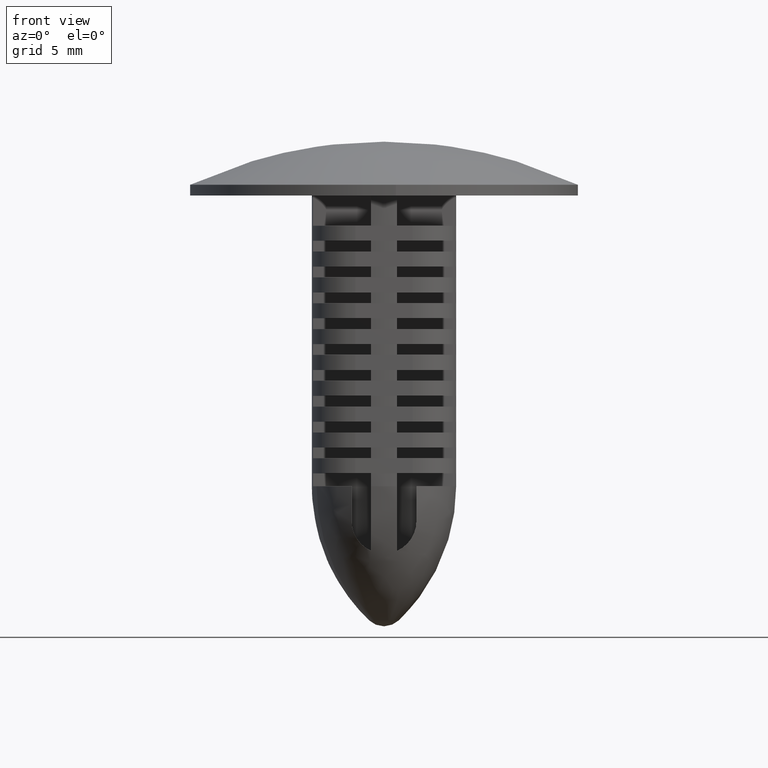
[diagram: clean part render]
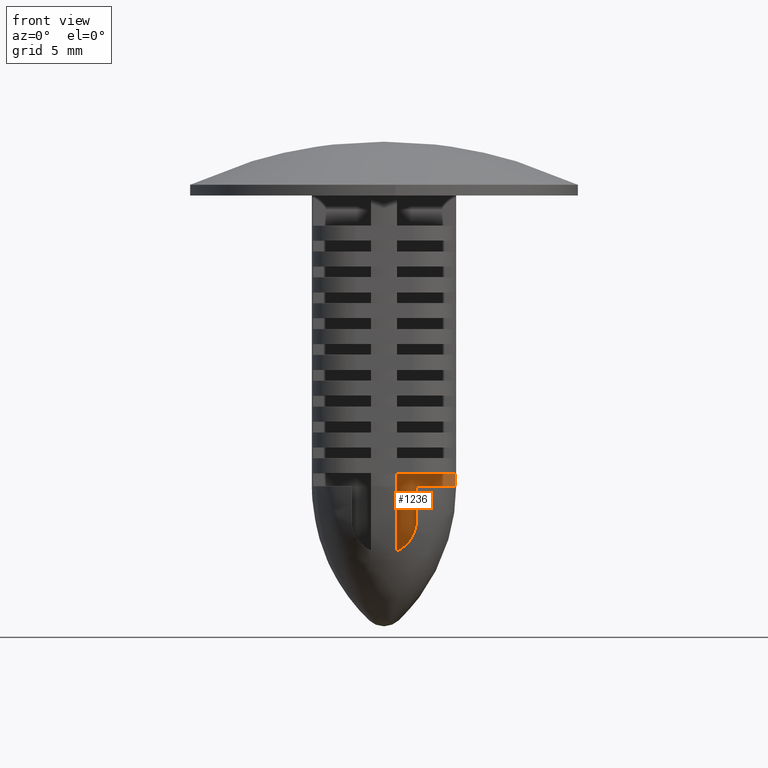
[diagram: same view with one face highlighted and labeled with its STEP entity id]
A machine part, front view. The second image highlights one B-rep face of the part: STEP entity #1236.
In plain terms, the highlighted face is a freeform B-spline surface patch.
Its self-contained STEP definition (entity closure, byte-faithful):
#593=CARTESIAN_POINT('',(3.295830699535400,-0.600000000000007,-16.0));
#594=VERTEX_POINT('',#593);
#919=CARTESIAN_POINT('',(1.500000000000000,-0.600000000000045,-17.625227291513252));
#920=VERTEX_POINT('',#919);
#926=CARTESIAN_POINT('',(0.599999999999988,-0.600000000000045,-19.0));
#927=VERTEX_POINT('',#926);
#928=CARTESIAN_POINT('',(1.500000000000000,-0.600000000000045,-17.625227291513252));
#929=CARTESIAN_POINT('',(1.500000000000000,-0.600000000000045,-18.607207797575224));
#930=CARTESIAN_POINT('',(0.599999999999992,-0.600000000000045,-19.000000000000011));
#938=(BOUNDED_CURVE()B_SPLINE_CURVE(2,(#928,#929,#930),.UNSPECIFIED.,.F.,.U.)CURVE()GEOMETRIC_REPRESENTATION_ITEM()QUASI_UNIFORM_CURVE()RATIONAL_B_SPLINE_CURVE((1.0,0.836660026534074,1.0))REPRESENTATION_ITEM(''));
#939=EDGE_CURVE('',#920,#927,#938,.T.);
#955=CARTESIAN_POINT('',(1.500000000000000,-0.600000000000045,-16.0));
#956=VERTEX_POINT('',#955);
#962=CARTESIAN_POINT('',(1.500000000000000,-0.600000000000045,-16.0));
#963=CARTESIAN_POINT('',(1.500000000000000,-0.600000000000045,-17.625227291513252));
#964=QUASI_UNIFORM_CURVE('',1,(#962,#963),.UNSPECIFIED.,.F.,.U.);
#965=EDGE_CURVE('',#956,#920,#964,.T.);
#1074=CARTESIAN_POINT('',(3.295830699535400,-0.600000000000007,-16.0));
#1075=CARTESIAN_POINT('',(1.500000000000000,-0.600000000000045,-16.0));
#1076=QUASI_UNIFORM_CURVE('',1,(#1074,#1075),.UNSPECIFIED.,.F.,.U.);
#1077=EDGE_CURVE('',#594,#956,#1076,.T.);
#1195=CARTESIAN_POINT('',(0.599999999999991,-0.600000000000009,-15.400000000000000));
#1196=VERTEX_POINT('',#1195);
#1197=CARTESIAN_POINT('',(0.599999999999988,-0.600000000000045,-19.0));
#1198=CARTESIAN_POINT('',(0.599999999999991,-0.600000000000009,-15.400000000000000));
#1199=QUASI_UNIFORM_CURVE('',1,(#1197,#1198),.UNSPECIFIED.,.F.,.U.);
#1200=EDGE_CURVE('',#927,#1196,#1199,.T.);
#1213=CARTESIAN_POINT('',(0.465343287089767,-0.600000000000009,-19.179820005884231));
#1214=CARTESIAN_POINT('',(0.465343287089767,-0.600000000000009,-15.220179640064179));
#1215=CARTESIAN_POINT('',(3.430487508856040,-0.600000000000009,-19.179820005884231));
#1216=CARTESIAN_POINT('',(3.430487508856040,-0.600000000000009,-15.220179640064179));
#1217=B_SPLINE_SURFACE_WITH_KNOTS('',1,1,((#1213,#1215),(#1214,#1216)),.UNSPECIFIED.,.F.,.F.,.U.,(2,2),(2,2),(0.0,3.959640365820054),(0.0,2.965144221766273),.UNSPECIFIED.);
#1218=CARTESIAN_POINT('',(3.295830699535400,-0.600000000000007,-15.400000000000000));
#1219=VERTEX_POINT('',#1218);
#1220=CARTESIAN_POINT('',(3.295830699535400,-0.600000000000007,-16.0));
#1221=CARTESIAN_POINT('',(3.295830699535400,-0.600000000000007,-15.400000000000000));
#1222=QUASI_UNIFORM_CURVE('',1,(#1220,#1221),.UNSPECIFIED.,.F.,.U.);
#1223=EDGE_CURVE('',#594,#1219,#1222,.T.);
#1224=ORIENTED_EDGE('',*,*,#1223,.T.);
#1225=CARTESIAN_POINT('',(3.295830699535400,-0.600000000000007,-15.400000000000000));
#1226=CARTESIAN_POINT('',(0.599999999999991,-0.600000000000009,-15.400000000000000));
#1227=QUASI_UNIFORM_CURVE('',1,(#1225,#1226),.UNSPECIFIED.,.F.,.U.);
#1228=EDGE_CURVE('',#1219,#1196,#1227,.T.);
#1229=ORIENTED_EDGE('',*,*,#1228,.T.);
#1230=ORIENTED_EDGE('',*,*,#1200,.F.);
#1231=ORIENTED_EDGE('',*,*,#939,.F.);
#1232=ORIENTED_EDGE('',*,*,#965,.F.);
#1233=ORIENTED_EDGE('',*,*,#1077,.F.);
#1234=EDGE_LOOP('',(#1224,#1229,#1230,#1231,#1232,#1233));
#1235=FACE_OUTER_BOUND('',#1234,.T.);
#1236=ADVANCED_FACE('',(#1235),#1217,.F.);